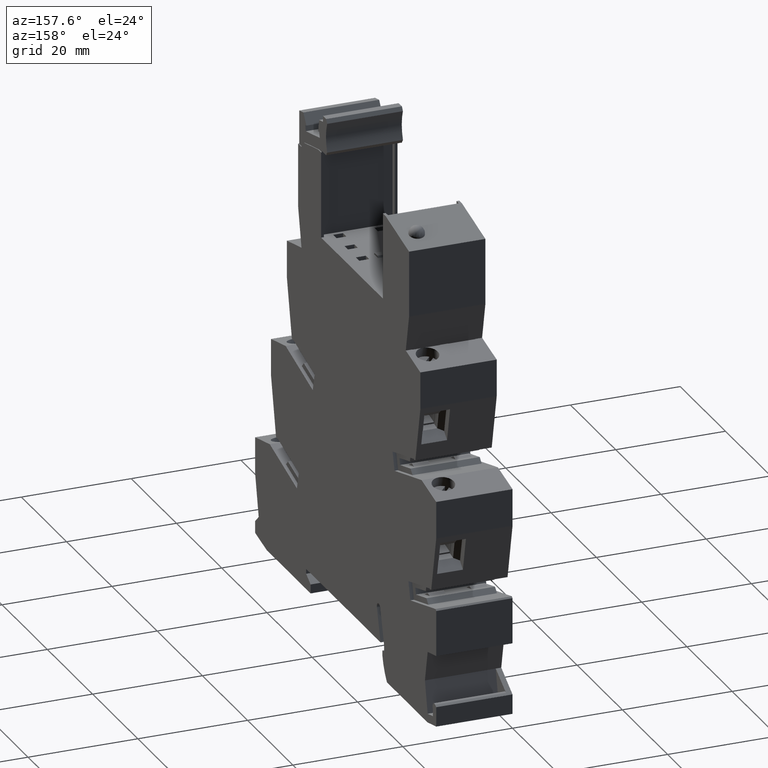
[diagram: clean part render]
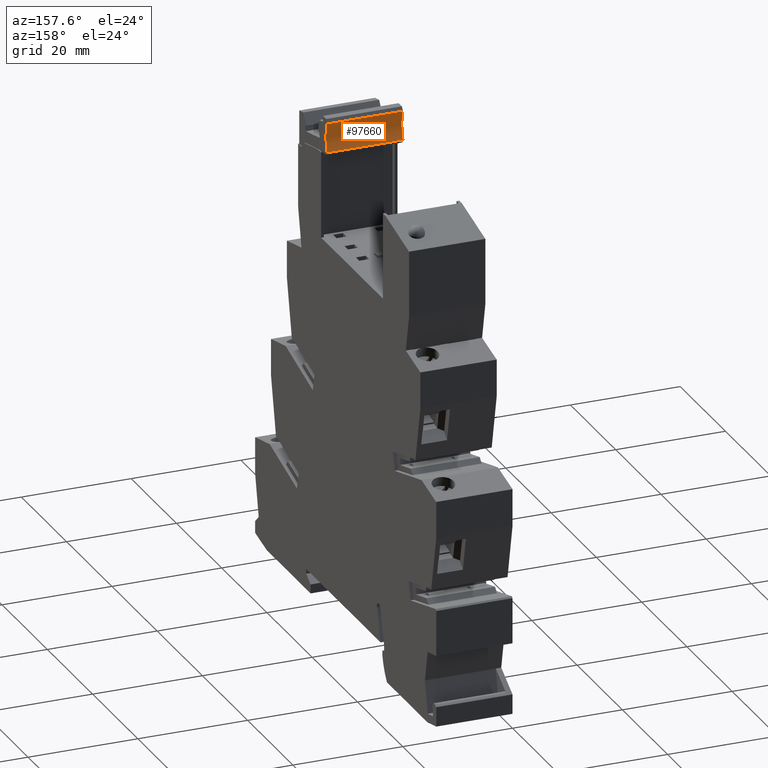
[diagram: same view with one face highlighted and labeled with its STEP entity id]
A machine part, auxiliary view. The second image highlights one B-rep face of the part: STEP entity #97660.
In plain terms, the highlighted cylindrical surface (partial cylindrical patch) has radius 7 mm, axis along (-1, 0, -0).
Its self-contained STEP definition (entity closure, byte-faithful):
#82190=CARTESIAN_POINT('',(9.87494968319699,82.8749667940425,
-0.74999999854331));
#82200=VERTEX_POINT('',#82190);
#82230=CARTESIAN_POINT('',(9.87494968332252,82.8749667940607,
-14.5499999985433));
#82240=DIRECTION('',(-9.0965102661587E-12,-1.3174329277823E-12,1.));
#82250=VECTOR('',#82240,1.);
#82260=LINE('',#82230,#82250);
#82270=CARTESIAN_POINT('',(9.87494968332252,82.8749667940607,
-14.5499999985433));
#82280=VERTEX_POINT('',#82270);
#82290=EDGE_CURVE('',#82280,#82200,#82260,.T.);
#95790=CARTESIAN_POINT('',(3.38576257474846,80.2500000000007,
-14.5499999986058));
#95800=DIRECTION('',(-9.0965102661587E-12,-1.3174329277823E-12,1.));
#95810=DIRECTION('',(1.,-6.29277373059031E-14,9.09651026615862E-12));
#95820=AXIS2_PLACEMENT_3D('',#95790,#95800,#95810);
#95830=CIRCLE('',#95820,7.00000000000011);
#95840=CARTESIAN_POINT('',(9.85798622406006,77.5834814770398,
-14.5499999985504));
#95850=VERTEX_POINT('',#95840);
#95860=EDGE_CURVE('',#95850,#82280,#95830,.T.);
#96920=CARTESIAN_POINT('',(9.85798622393452,77.5834814770217,
-0.749999998550436));
#96930=VERTEX_POINT('',#96920);
#96960=CARTESIAN_POINT('',(3.38576257462293,80.2499999999825,
-0.749999998605798));
#96970=DIRECTION('',(-9.0965102661587E-12,-1.3174329277823E-12,1.));
#96980=DIRECTION('',(1.,-6.29277373059031E-14,9.09651026615862E-12));
#96990=AXIS2_PLACEMENT_3D('',#96960,#96970,#96980);
#97000=CIRCLE('',#96990,7.00000000000011);
#97010=EDGE_CURVE('',#96930,#82200,#97000,.T.);
#97500=CARTESIAN_POINT('',(3.38576257474846,80.2500000000007,
-14.5499999986058));
#97510=DIRECTION('',(-9.0965102661587E-12,-1.3174329277823E-12,1.));
#97520=DIRECTION('',(1.,-6.29277373059031E-14,9.09651026615862E-12));
#97530=AXIS2_PLACEMENT_3D('',#97500,#97510,#97520);
#97540=CYLINDRICAL_SURFACE('',#97530,7.00000000000011);
#97550=ORIENTED_EDGE('',*,*,#95860,.F.);
#97560=ORIENTED_EDGE('',*,*,#82290,.F.);
#97570=ORIENTED_EDGE('',*,*,#97010,.T.);
#97580=CARTESIAN_POINT('',(9.85798622406006,77.5834814770398,
-14.5499999985504));
#97590=DIRECTION('',(-9.0965102661587E-12,-1.3174329277823E-12,1.));
#97600=VECTOR('',#97590,1.);
#97610=LINE('',#97580,#97600);
#97620=EDGE_CURVE('',#95850,#96930,#97610,.T.);
#97630=ORIENTED_EDGE('',*,*,#97620,.T.);
#97640=EDGE_LOOP('',(#97630,#97570,#97560,#97550));
#97650=FACE_OUTER_BOUND('',#97640,.T.);
#97660=ADVANCED_FACE('',(#97650),#97540,.F.);